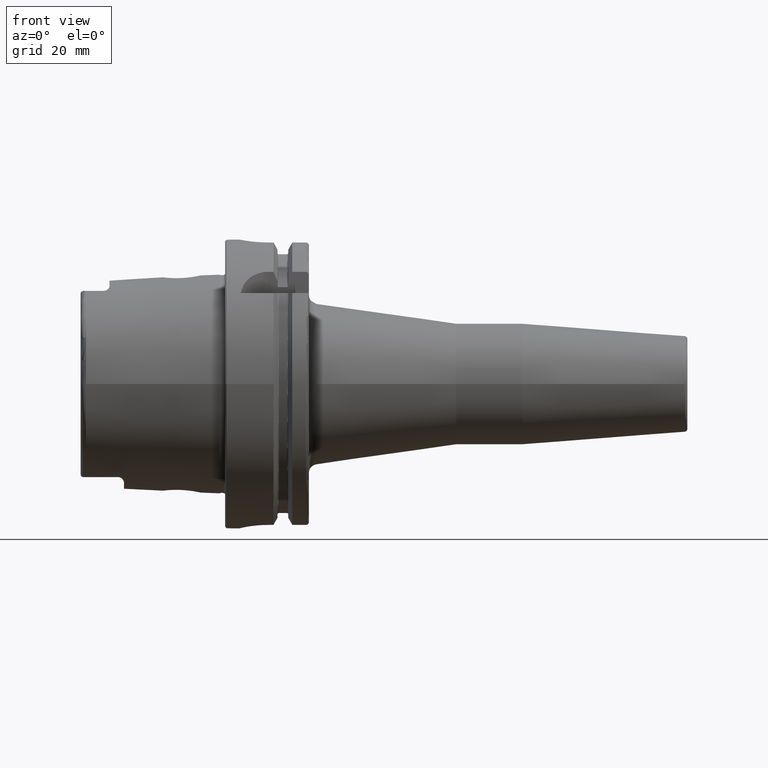
[diagram: clean part render]
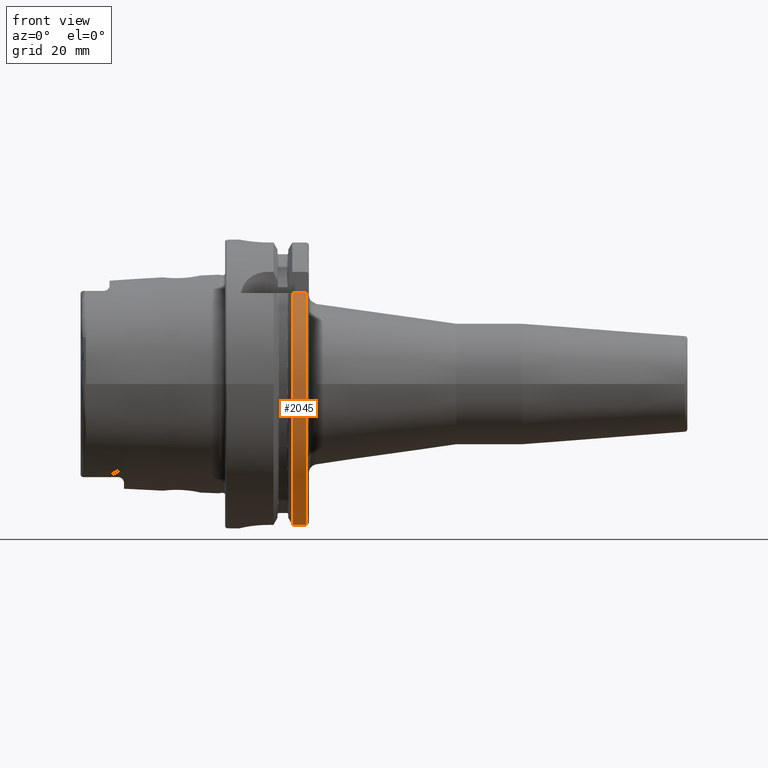
[diagram: same view with one face highlighted and labeled with its STEP entity id]
A machine part, front view. The second image highlights one B-rep face of the part: STEP entity #2045.
In plain terms, the highlighted cylindrical surface (partial cylindrical patch) has radius 50 mm, axis along (1, 0, 0).
Its self-contained STEP definition (entity closure, byte-faithful):
#192=CYLINDRICAL_SURFACE('',#2270,50.);
#270=FACE_OUTER_BOUND('',#399,.T.);
#399=EDGE_LOOP('',(#1689,#1690,#1691,#1692));
#517=LINE('',#4004,#625);
#535=LINE('',#4213,#643);
#625=VECTOR('',#2655,10.);
#643=VECTOR('',#2729,10.);
#749=CIRCLE('',#2267,50.);
#751=CIRCLE('',#2271,50.);
#930=VERTEX_POINT('',#3999);
#931=VERTEX_POINT('',#4003);
#963=VERTEX_POINT('',#4201);
#964=VERTEX_POINT('',#4212);
#1174=EDGE_CURVE('',#931,#930,#517,.T.);
#1222=EDGE_CURVE('',#964,#963,#535,.T.);
#1236=EDGE_CURVE('',#931,#963,#749,.T.);
#1239=EDGE_CURVE('',#930,#964,#751,.T.);
#1689=ORIENTED_EDGE('',*,*,#1174,.T.);
#1690=ORIENTED_EDGE('',*,*,#1239,.T.);
#1691=ORIENTED_EDGE('',*,*,#1222,.T.);
#1692=ORIENTED_EDGE('',*,*,#1236,.F.);
#2045=ADVANCED_FACE('',(#270),#192,.T.);
#2267=AXIS2_PLACEMENT_3D('',#4271,#2750,#2751);
#2270=AXIS2_PLACEMENT_3D('',#4276,#2757,#2758);
#2271=AXIS2_PLACEMENT_3D('',#4277,#2759,#2760);
#2655=DIRECTION('',(-1.,0.,0.));
#2729=DIRECTION('',(1.,0.,0.));
#2750=DIRECTION('center_axis',(1.,0.,0.));
#2751=DIRECTION('ref_axis',(0.,0.,-1.));
#2757=DIRECTION('center_axis',(1.,0.,0.));
#2758=DIRECTION('ref_axis',(0.,-0.94483222014474,-0.327554691275153));
#2759=DIRECTION('center_axis',(1.,0.,0.));
#2760=DIRECTION('ref_axis',(0.,0.,-1.));
#3999=CARTESIAN_POINT('',(23.2620290209214,-38.8297566307078,31.5));
#4003=CARTESIAN_POINT('',(28.,-38.8297566307078,31.5));
#4004=CARTESIAN_POINT('',(25.6310145104607,-38.8297566307078,31.5));
#4201=CARTESIAN_POINT('',(28.,-11.,-48.7749935930288));
#4212=CARTESIAN_POINT('',(23.2620290209214,-11.,-48.7749935930288));
#4213=CARTESIAN_POINT('',(25.6310145104607,-11.,-48.7749935930288));
#4271=CARTESIAN_POINT('Origin',(28.,0.,0.));
#4276=CARTESIAN_POINT('Origin',(25.6310145104607,0.,0.));
#4277=CARTESIAN_POINT('Origin',(23.2620290209214,0.,0.));